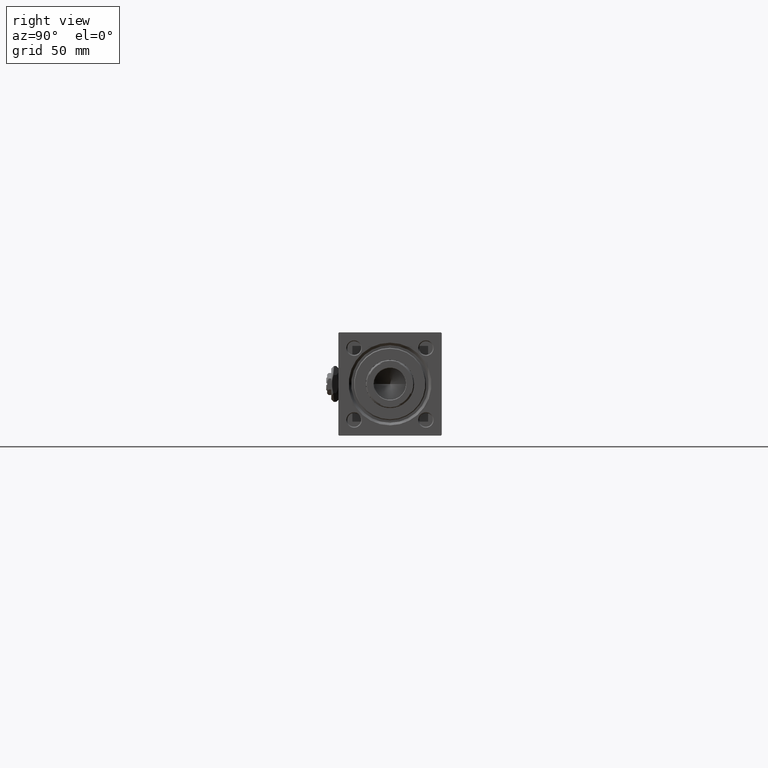
[diagram: clean part render]
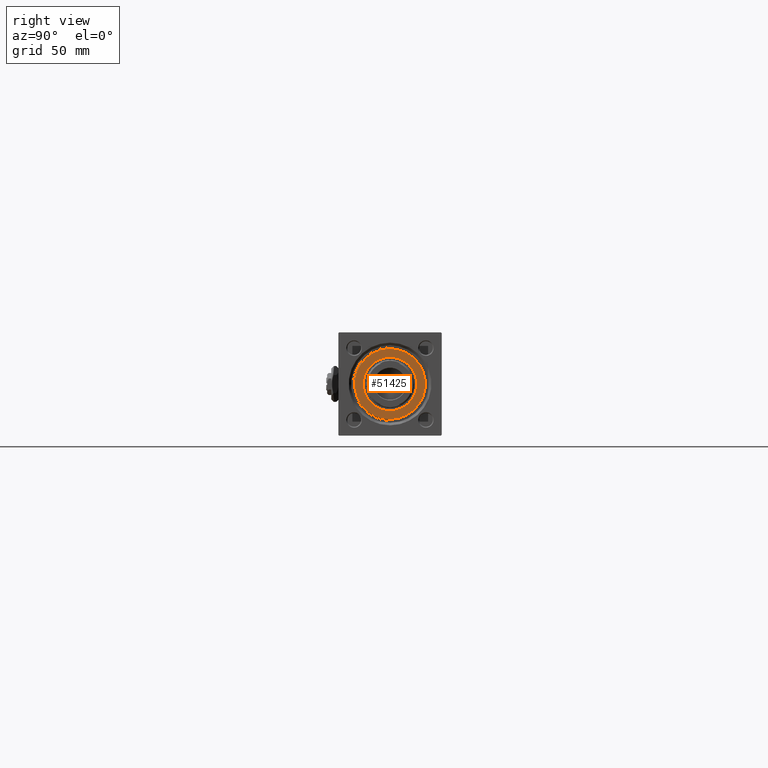
[diagram: same view with one face highlighted and labeled with its STEP entity id]
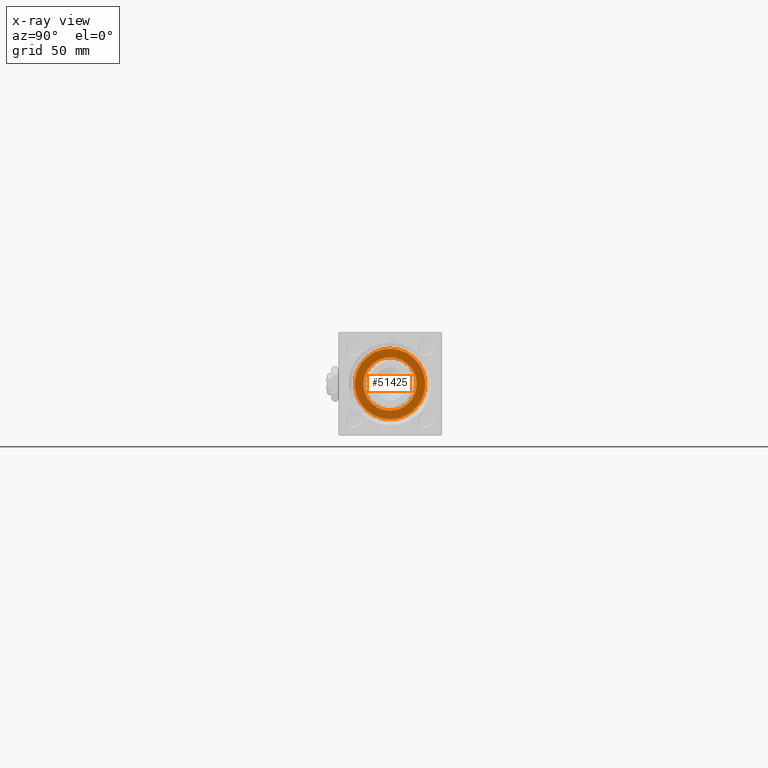
[diagram: x-ray of the same camera — body ghosted, the highlighted face saturated]
A machine part, right view. The second image highlights one B-rep face of the part: STEP entity #51425.
The next image is the same camera in x-ray: the body ghosted, the highlighted face saturated — about 0% of this face is hidden behind the body in this view.
In plain terms, the highlighted planar face has unit normal (1, 0, 0).
Its self-contained STEP definition (entity closure, byte-faithful):
#737 = VERTEX_POINT ( 'NONE', #51855 ) ;
#772 = DIRECTION ( 'NONE',  ( 1.000000000000000000, 0.000000000000000000, -0.000000000000000000 ) ) ;
#1029 = DIRECTION ( 'NONE',  ( 0.000000000000000000, 0.000000000000000000, 1.000000000000000000 ) ) ;
#2618 = ORIENTED_EDGE ( 'NONE', *, *, #6821, .T. ) ;
#4670 = CARTESIAN_POINT ( 'NONE',  ( 0.000000000000000000, 0.000000000000000000, 40.70000000000000284 ) ) ;
#5053 = CARTESIAN_POINT ( 'NONE',  ( 15.50000000000000000, 0.000000000000000000, 40.70000000000000284 ) ) ;
#5236 = CARTESIAN_POINT ( 'NONE',  ( 0.000000000000000000, 0.000000000000000000, 40.70000000000000284 ) ) ;
#6069 = DIRECTION ( 'NONE',  ( 0.000000000000000000, 0.000000000000000000, 1.000000000000000000 ) ) ;
#6821 = EDGE_CURVE ( 'NONE', #737, #22465, #33894, .T. ) ;
#8892 = AXIS2_PLACEMENT_3D ( 'NONE', #20376, #51370, #15403 ) ;
#11277 = AXIS2_PLACEMENT_3D ( 'NONE', #28914, #6069, #25258 ) ;
#11293 = CARTESIAN_POINT ( 'NONE',  ( 0.000000000000000000, 0.000000000000000000, 40.70000000000000284 ) ) ;
#11315 = AXIS2_PLACEMENT_3D ( 'NONE', #11293, #19679, #23357 ) ;
#11487 = ORIENTED_EDGE ( 'NONE', *, *, #39648, .F. ) ;
#12292 = CIRCLE ( 'NONE', #8892, 15.50000000000000000 ) ;
#12314 = CIRCLE ( 'NONE', #24858, 15.50000000000000000 ) ;
#14584 = CARTESIAN_POINT ( 'NONE',  ( -15.50000000000000000, 1.898202538678397557E-15, 40.70000000000000284 ) ) ;
#14892 = ORIENTED_EDGE ( 'NONE', *, *, #31515, .T. ) ;
#15403 = DIRECTION ( 'NONE',  ( 1.000000000000000000, 0.000000000000000000, 0.000000000000000000 ) ) ;
#15472 = VERTEX_POINT ( 'NONE', #5053 ) ;
#16227 = CARTESIAN_POINT ( 'NONE',  ( 20.49999999999999645, 2.541142108230757480E-15, 40.70000000000000284 ) ) ;
#18288 = VERTEX_POINT ( 'NONE', #14584 ) ;
#19679 = DIRECTION ( 'NONE',  ( 0.000000000000000000, 0.000000000000000000, 1.000000000000000000 ) ) ;
#20376 = CARTESIAN_POINT ( 'NONE',  ( 0.000000000000000000, 0.000000000000000000, 40.70000000000000284 ) ) ;
#21926 = DIRECTION ( 'NONE',  ( 1.000000000000000000, 0.000000000000000000, 0.000000000000000000 ) ) ;
#21935 = AXIS2_PLACEMENT_3D ( 'NONE', #5236, #1029, #772 ) ;
#22465 = VERTEX_POINT ( 'NONE', #16227 ) ;
#23357 = DIRECTION ( 'NONE',  ( 1.000000000000000000, 0.000000000000000000, 0.000000000000000000 ) ) ;
#24669 = PLANE ( 'NONE',  #21935 ) ;
#24858 = AXIS2_PLACEMENT_3D ( 'NONE', #4670, #28305, #21926 ) ;
#25258 = DIRECTION ( 'NONE',  ( 1.000000000000000000, 0.000000000000000000, 0.000000000000000000 ) ) ;
#28305 = DIRECTION ( 'NONE',  ( 0.000000000000000000, 0.000000000000000000, 1.000000000000000000 ) ) ;
#28914 = CARTESIAN_POINT ( 'NONE',  ( 0.000000000000000000, 0.000000000000000000, 40.70000000000000284 ) ) ;
#29119 = FACE_BOUND ( 'NONE', #48269, .T. ) ;
#30831 = ORIENTED_EDGE ( 'NONE', *, *, #34930, .F. ) ;
#31515 = EDGE_CURVE ( 'NONE', #22465, #737, #42301, .T. ) ;
#33894 = CIRCLE ( 'NONE', #11277, 20.49999999999999645 ) ;
#34930 = EDGE_CURVE ( 'NONE', #18288, #15472, #12292, .T. ) ;
#37486 = EDGE_LOOP ( 'NONE', ( #2618, #14892 ) ) ;
#39648 = EDGE_CURVE ( 'NONE', #15472, #18288, #12314, .T. ) ;
#41190 = FACE_OUTER_BOUND ( 'NONE', #37486, .T. ) ;
#42301 = CIRCLE ( 'NONE', #11315, 20.49999999999999645 ) ;
#48269 = EDGE_LOOP ( 'NONE', ( #11487, #30831 ) ) ;
#51370 = DIRECTION ( 'NONE',  ( 0.000000000000000000, 0.000000000000000000, 1.000000000000000000 ) ) ;
#51425 = ADVANCED_FACE ( 'NONE', ( #29119, #41190 ), #24669, .T. ) ;
#51855 = CARTESIAN_POINT ( 'NONE',  ( -20.49999999999999645, 0.000000000000000000, 40.70000000000000284 ) ) ;